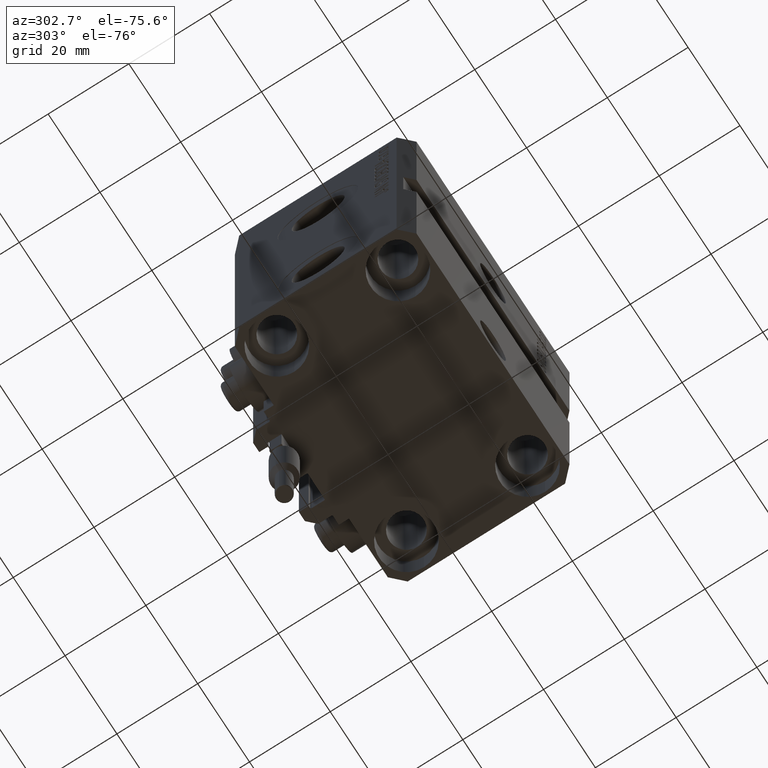
[diagram: clean part render]
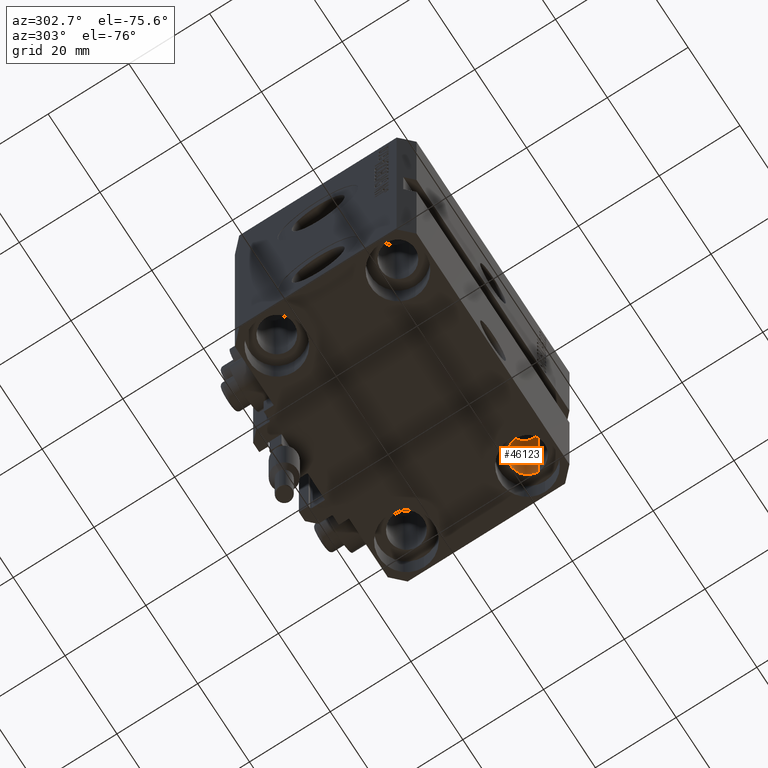
[diagram: same view with one face highlighted and labeled with its STEP entity id]
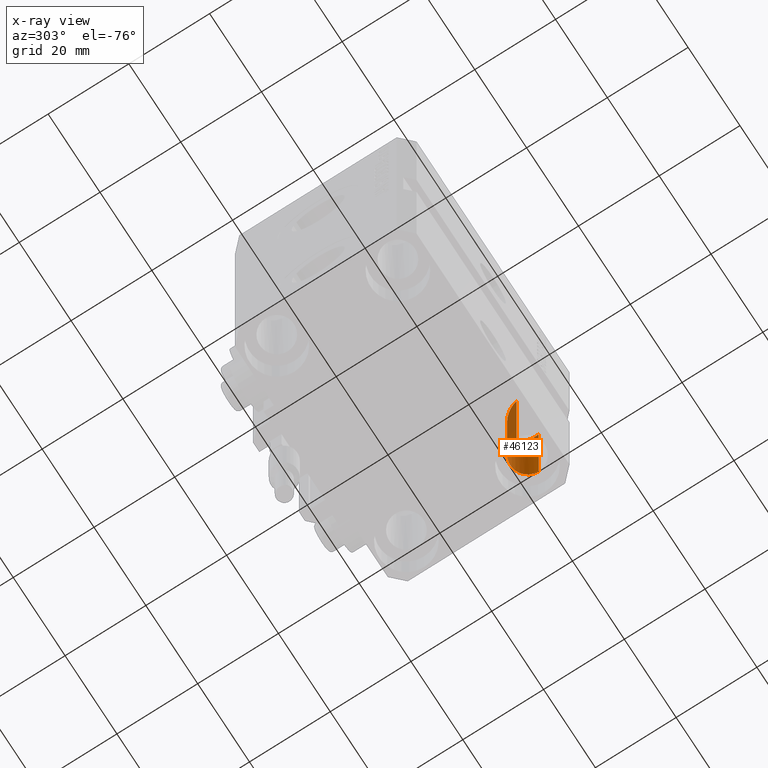
[diagram: x-ray of the same camera — body ghosted, the highlighted face saturated]
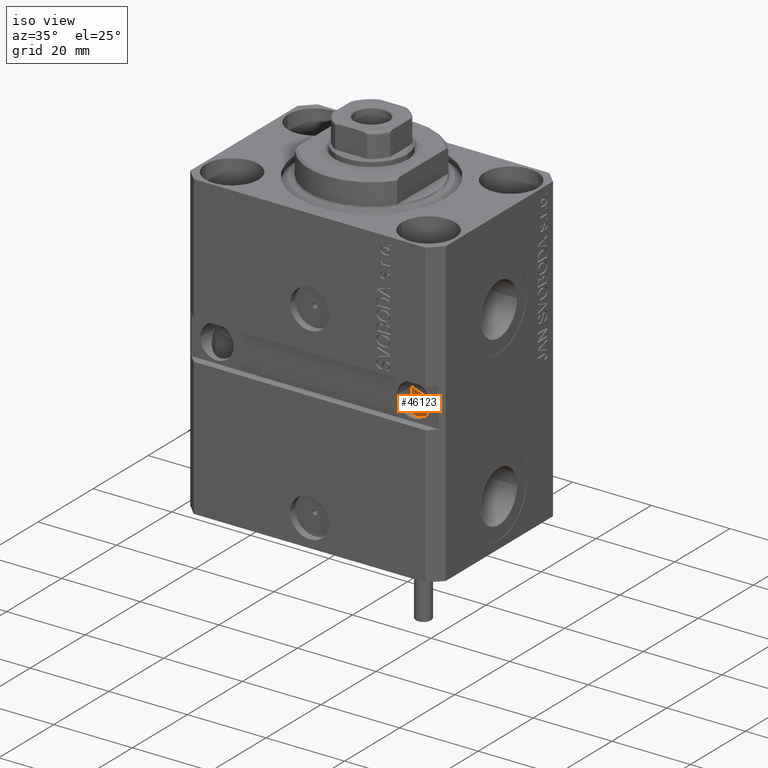
[diagram: same view with one face highlighted and labeled with its STEP entity id]
A machine part, auxiliary view. The second image highlights one B-rep face of the part: STEP entity #46123.
The next image is the same camera in x-ray: the body ghosted, the highlighted face saturated — about 20% of this face is hidden behind the body in this view.
A second angle (iso view) of the same face is appended — the face is thin or edge-on in the first view.
In plain terms, the highlighted cylindrical surface (edge-blend (fillet) strip) has radius 4.25 mm, axis along (0, 0, 1).
Its self-contained STEP definition (entity closure, byte-faithful):
#655 = VERTEX_POINT ( 'NONE', #32248 ) ;
#5290 = EDGE_LOOP ( 'NONE', ( #25118, #38738, #44309, #8366 ) ) ;
#8299 = DIRECTION ( 'NONE',  ( -0.000000000000000000, -0.000000000000000000, 1.000000000000000000 ) ) ;
#8366 = ORIENTED_EDGE ( 'NONE', *, *, #39506, .T. ) ;
#10356 = LINE ( 'NONE', #43697, #11059 ) ;
#11059 = VECTOR ( 'NONE', #32661, 1000.000000000000000 ) ;
#11914 = AXIS2_PLACEMENT_3D ( 'NONE', #45648, #12074, #38522 ) ;
#12074 = DIRECTION ( 'NONE',  ( -0.000000000000000000, -0.000000000000000000, 1.000000000000000000 ) ) ;
#12606 = CIRCLE ( 'NONE', #37638, 4.249999999977462473 ) ;
#18215 = VECTOR ( 'NONE', #8299, 1000.000000000000000 ) ;
#18782 = EDGE_CURVE ( 'NONE', #33847, #655, #12606, .T. ) ;
#20000 = VERTEX_POINT ( 'NONE', #21107 ) ;
#20301 =( BOUNDED_CURVE ( )  B_SPLINE_CURVE ( 3, ( #42093, #30568, #34244, #45289 ),
 .UNSPECIFIED., .F., .F. ) 
 B_SPLINE_CURVE_WITH_KNOTS ( ( 4, 4 ),
 ( 1.570796326794896558, 4.712388980384689674 ),
 .UNSPECIFIED. ) 
 CURVE ( )  GEOMETRIC_REPRESENTATION_ITEM ( )  RATIONAL_B_SPLINE_CURVE ( ( 1.000000000000000000, 0.3333333333333333703, 0.3333333333333333703, 1.000000000000000000 ) ) 
 REPRESENTATION_ITEM ( '' )  );
#21107 = CARTESIAN_POINT ( 'NONE',  ( 29.24999999998326672, -15.00000000000000000, -36.99999999999999289 ) ) ;
#23263 = EDGE_CURVE ( 'NONE', #655, #20000, #30588, .T. ) ;
#25118 = ORIENTED_EDGE ( 'NONE', *, *, #45852, .F. ) ;
#26227 = DIRECTION ( 'NONE',  ( 0.000000000000000000, 0.000000000000000000, -1.000000000000000000 ) ) ;
#30568 = CARTESIAN_POINT ( 'NONE',  ( 29.24999999998327027, -6.500000000033487879, -45.49999999996650502 ) ) ;
#30588 = LINE ( 'NONE', #42115, #18215 ) ;
#30683 = CYLINDRICAL_SURFACE ( 'NONE', #11914, 4.249999999977462473 ) ;
#32248 = CARTESIAN_POINT ( 'NONE',  ( 29.24999999997746869, -15.00000000000000000, -68.00000000000000000 ) ) ;
#32661 = DIRECTION ( 'NONE',  ( -0.000000000000000000, -0.000000000000000000, 1.000000000000000000 ) ) ;
#33847 = VERTEX_POINT ( 'NONE', #46234 ) ;
#34244 = CARTESIAN_POINT ( 'NONE',  ( 20.75000000001675104, -6.500000000033487879, -45.49999999996650502 ) ) ;
#34554 = CARTESIAN_POINT ( 'NONE',  ( 25.00000000000000355, -15.00000000000000000, -68.00000000000000000 ) ) ;
#37638 = AXIS2_PLACEMENT_3D ( 'NONE', #34554, #26227, #41431 ) ;
#38522 = DIRECTION ( 'NONE',  ( 1.000000000000000000, 0.000000000000000000, 0.000000000000000000 ) ) ;
#38738 = ORIENTED_EDGE ( 'NONE', *, *, #18782, .T. ) ;
#39506 = EDGE_CURVE ( 'NONE', #20000, #46963, #20301, .T. ) ;
#40993 = CARTESIAN_POINT ( 'NONE',  ( 20.75000000001675104, -15.00000000000000000, -36.99999999999999289 ) ) ;
#41431 = DIRECTION ( 'NONE',  ( -1.000000000000000000, 0.000000000000000000, 0.000000000000000000 ) ) ;
#42093 = CARTESIAN_POINT ( 'NONE',  ( 29.24999999998326672, -15.00000000000000000, -36.99999999999999289 ) ) ;
#42115 = CARTESIAN_POINT ( 'NONE',  ( 29.24999999997746869, -15.00000000000000000, -77.00000000000000000 ) ) ;
#43697 = CARTESIAN_POINT ( 'NONE',  ( 20.75000000002254197, -15.00000000000000000, -77.00000000000000000 ) ) ;
#44309 = ORIENTED_EDGE ( 'NONE', *, *, #23263, .T. ) ;
#45289 = CARTESIAN_POINT ( 'NONE',  ( 20.75000000001675104, -15.00000000000000000, -36.99999999999999289 ) ) ;
#45406 = FACE_OUTER_BOUND ( 'NONE', #5290, .T. ) ;
#45648 = CARTESIAN_POINT ( 'NONE',  ( 25.00000000000000355, -15.00000000000000000, -77.00000000000000000 ) ) ;
#45852 = EDGE_CURVE ( 'NONE', #33847, #46963, #10356, .T. ) ;
#46123 = ADVANCED_FACE ( 'NONE', ( #45406 ), #30683, .F. ) ;
#46234 = CARTESIAN_POINT ( 'NONE',  ( 20.75000000002254197, -15.00000000000000000, -68.00000000000000000 ) ) ;
#46963 = VERTEX_POINT ( 'NONE', #40993 ) ;